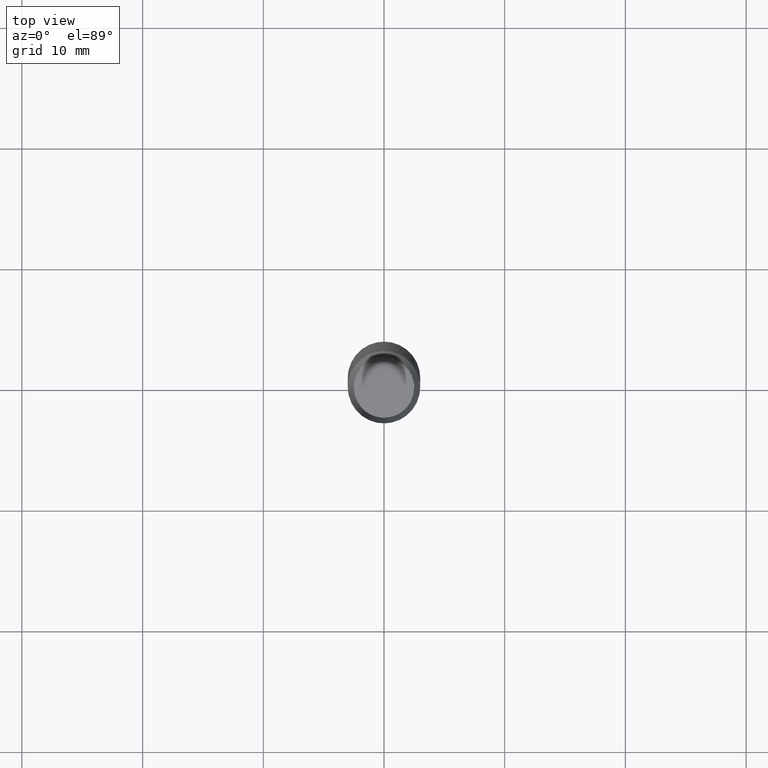
[diagram: clean part render]
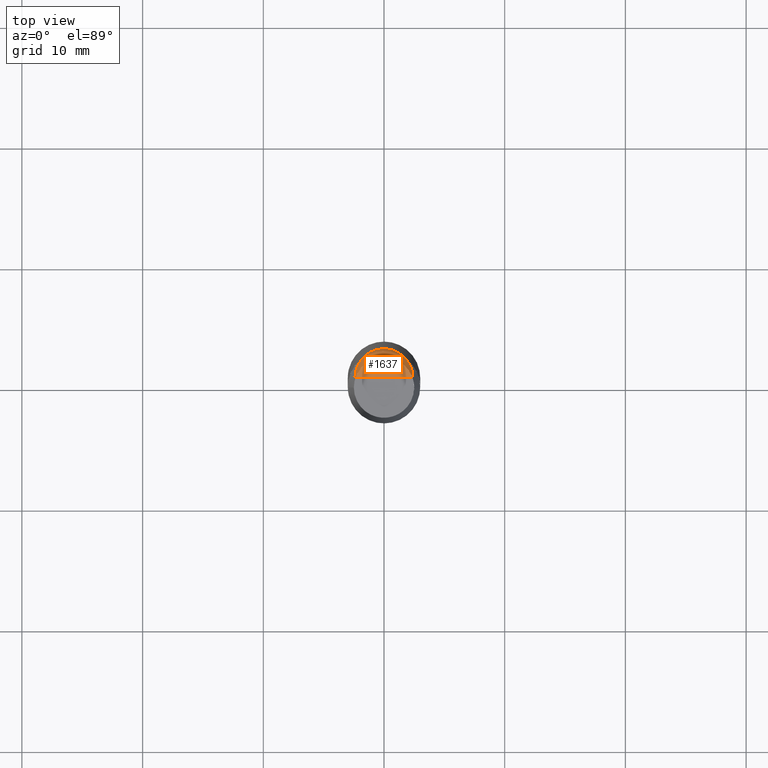
[diagram: same view with one face highlighted and labeled with its STEP entity id]
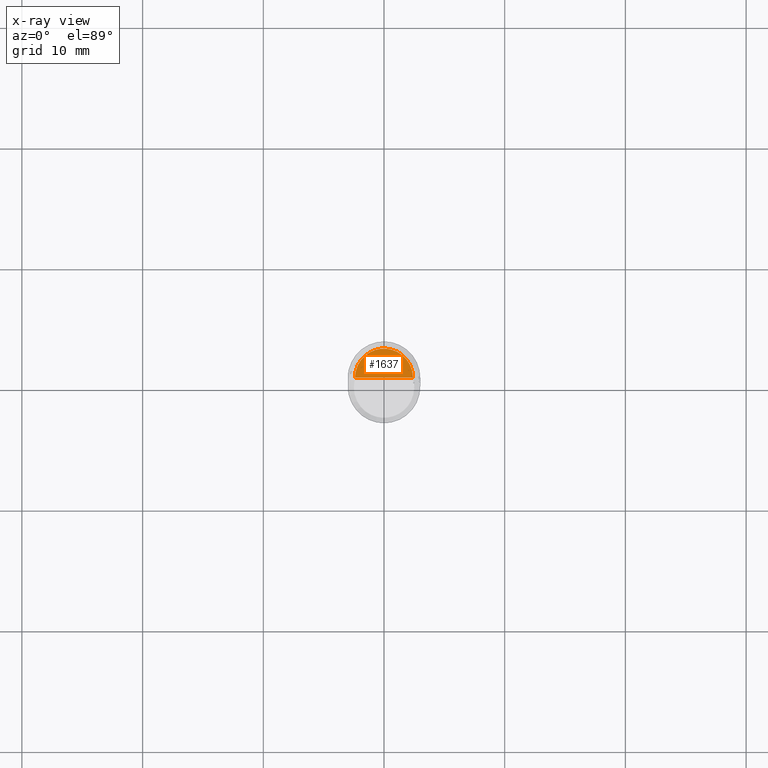
[diagram: x-ray of the same camera — body ghosted, the highlighted face saturated]
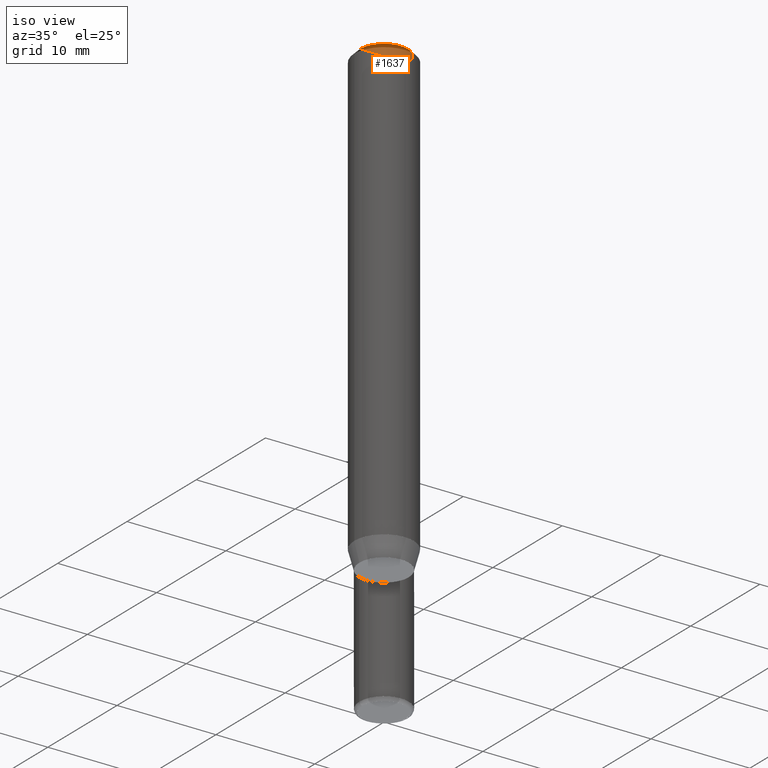
[diagram: same view with one face highlighted and labeled with its STEP entity id]
A machine part, top view. The second image highlights one B-rep face of the part: STEP entity #1637.
The next image is the same camera in x-ray: the body ghosted, the highlighted face saturated — about 0% of this face is hidden behind the body in this view.
A second angle (iso view) of the same face is appended — the face is thin or edge-on in the first view.
In plain terms, the highlighted face is a freeform B-spline surface patch.
Its self-contained STEP definition (entity closure, byte-faithful):
#1374=CARTESIAN_POINT('',(2.4,0.0,45.133974596216));
#1375=CARTESIAN_POINT('',(2.4,2.4,45.133974596216));
#1376=CARTESIAN_POINT('',(0.0,2.4,45.133974596216));
#1377=CARTESIAN_POINT('',(-2.4,2.4,45.133974596216));
#1378=CARTESIAN_POINT('',(-2.4,0.0,45.133974596216));
#1379=CARTESIAN_POINT('',(0.0,0.0,45.133974596216));
#1622=(
BOUNDED_SURFACE()
B_SPLINE_SURFACE(1,2,(
(#1374,#1375,#1376,#1377,#1378),
(#1379,#1379,#1379,#1379,#1379)
), .UNSPECIFIED.,.F.,.F.,.F.)
B_SPLINE_SURFACE_WITH_KNOTS((2,2),(3,2,3),(
0.0,1.0),(
0.0,0.5,1.0), .UNSPECIFIED.)
GEOMETRIC_REPRESENTATION_ITEM()
RATIONAL_B_SPLINE_SURFACE(((1.0,0.707106781187,1.0,0.707106781187,1.0),
(1.0,0.707106781187,1.0,0.707106781187,1.0)
))
REPRESENTATION_ITEM('')
SURFACE()
);
#1623=(
BOUNDED_CURVE()
B_SPLINE_CURVE(1,(#1379,#1374),.UNSPECIFIED.,.F.,.F.)
B_SPLINE_CURVE_WITH_KNOTS((2,2),
(0.0,1.0),.UNSPECIFIED.)
CURVE()
GEOMETRIC_REPRESENTATION_ITEM()
RATIONAL_B_SPLINE_CURVE((1.0,1.0))
REPRESENTATION_ITEM('')
);
#1624=(
BOUNDED_CURVE()
B_SPLINE_CURVE(2,(#1374,#1375,#1376,#1377,#1378),.UNSPECIFIED.,.F.,.F.)
B_SPLINE_CURVE_WITH_KNOTS((3,2,3),
(0.0,0.5,1.0),.UNSPECIFIED.)
CURVE()
GEOMETRIC_REPRESENTATION_ITEM()
RATIONAL_B_SPLINE_CURVE((1.0,0.707106781187,1.0,0.707106781187,1.0))
REPRESENTATION_ITEM('')
);
#1625=(
BOUNDED_CURVE()
B_SPLINE_CURVE(1,(#1378,#1379),.UNSPECIFIED.,.F.,.F.)
B_SPLINE_CURVE_WITH_KNOTS((2,2),
(0.0,1.0),.UNSPECIFIED.)
CURVE()
GEOMETRIC_REPRESENTATION_ITEM()
RATIONAL_B_SPLINE_CURVE((1.0,1.0))
REPRESENTATION_ITEM('')
);
#1626=VERTEX_POINT('',#1374);
#1627=VERTEX_POINT('',#1378);
#1628=VERTEX_POINT('',#1379);
#1629=EDGE_CURVE('',#1628,#1626,#1623,.T.);
#1630=EDGE_CURVE('',#1626,#1627,#1624,.T.);
#1631=EDGE_CURVE('',#1627,#1628,#1625,.T.);
#1632=ORIENTED_EDGE('',*,*,#1629,.T.);
#1633=ORIENTED_EDGE('',*,*,#1630,.T.);
#1634=ORIENTED_EDGE('',*,*,#1631,.T.);
#1635=EDGE_LOOP('',(#1632,#1633,#1634));
#1636=FACE_OUTER_BOUND('',#1635,.T.);
#1637=ADVANCED_FACE('',(#1636),#1622,.T.);